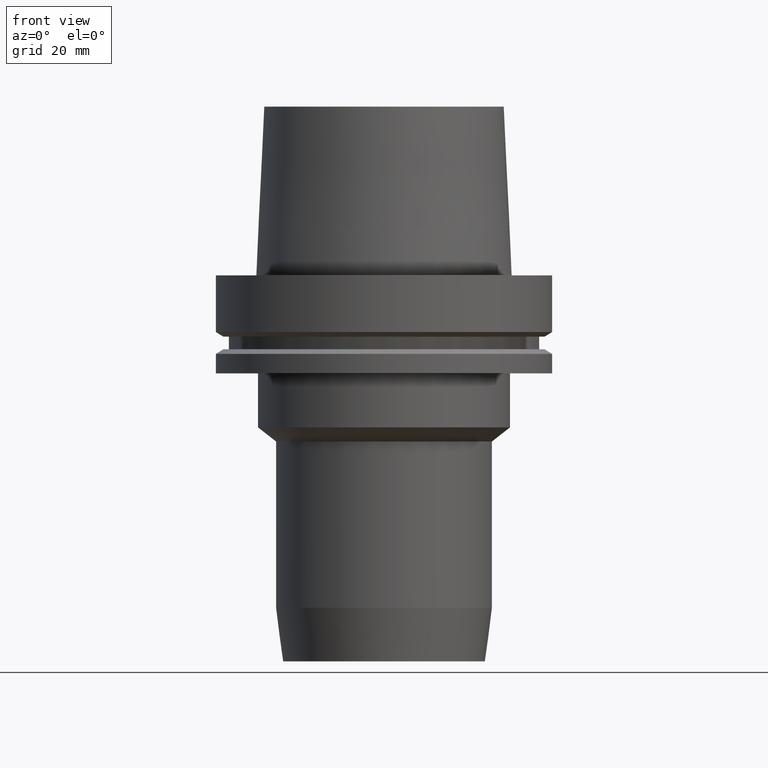
[diagram: clean part render]
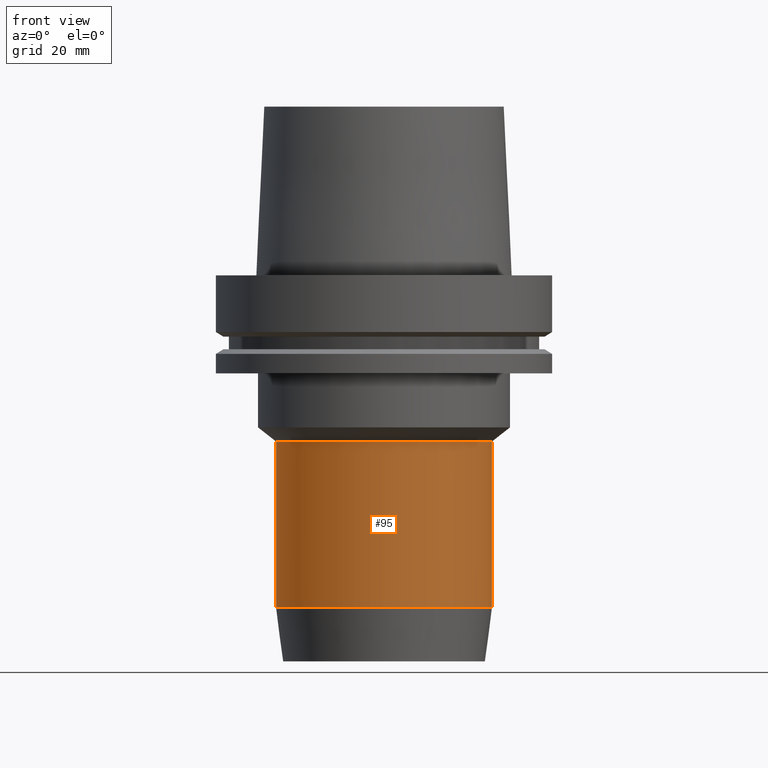
[diagram: same view with one face highlighted and labeled with its STEP entity id]
A machine part, front view. The second image highlights one B-rep face of the part: STEP entity #95.
In plain terms, the highlighted cylindrical surface (bore or boss wall) has radius 32 mm, axis along (0, 0, -1).
Its self-contained STEP definition (entity closure, byte-faithful):
#83=EDGE_CURVE('Unnamed[1]',#195,#195,#196,.T.);
#95=ADVANCED_FACE('Unnamed[1]',(#212,#213),#214,.T.);
#108=EDGE_CURVE('Unnamed[1]',#233,#233,#234,.T.);
#195=VERTEX_POINT('',#338);
#196=CIRCLE('',#339,31.9999999999999);
#212=FACE_BOUND('',#358,.T.);
#213=FACE_BOUND('',#359,.T.);
#214=CYLINDRICAL_SURFACE('',#360,31.9999999999945);
#233=VERTEX_POINT('',#385);
#234=CIRCLE('',#386,31.9999999999891);
#338=CARTESIAN_POINT('',(3.01185140537766E-015,31.9999999999999,-49.1872661974804));
#339=AXIS2_PLACEMENT_3D('',#491,#492,#493);
#358=EDGE_LOOP('',(#508));
#359=EDGE_LOOP('',(#509));
#360=AXIS2_PLACEMENT_3D('',#510,#511,#512);
#385=CARTESIAN_POINT('',(6.0257822230361E-015,31.9999999999891,-98.4084917746322));
#386=AXIS2_PLACEMENT_3D('',#531,#532,#533);
#491=CARTESIAN_POINT('',(3.01185140537766E-015,6.02370281075532E-015,-49.1872661974804));
#492=DIRECTION('',(6.12323399573677E-017,1.22464679914735E-016,-1.0));
#493=DIRECTION('',(-1.23259516440783E-032,1.0,1.22464679914735E-016));
#508=ORIENTED_EDGE('',*,*,#108,.F.);
#509=ORIENTED_EDGE('',*,*,#83,.T.);
#510=CARTESIAN_POINT('',(4.51881681420688E-015,9.03763362841375E-015,-73.7978789860563));
#511=DIRECTION('',(6.12323399573677E-017,1.22464679914735E-016,-1.0));
#512=DIRECTION('',(-1.23259516440783E-032,1.0,1.22464679914735E-016));
#531=CARTESIAN_POINT('',(6.0257822230361E-015,1.20515644460722E-014,-98.4084917746322));
#532=DIRECTION('',(6.12323399573677E-017,1.22464679914735E-016,-1.0));
#533=DIRECTION('',(-1.23259516440783E-032,1.0,1.22464679914735E-016));